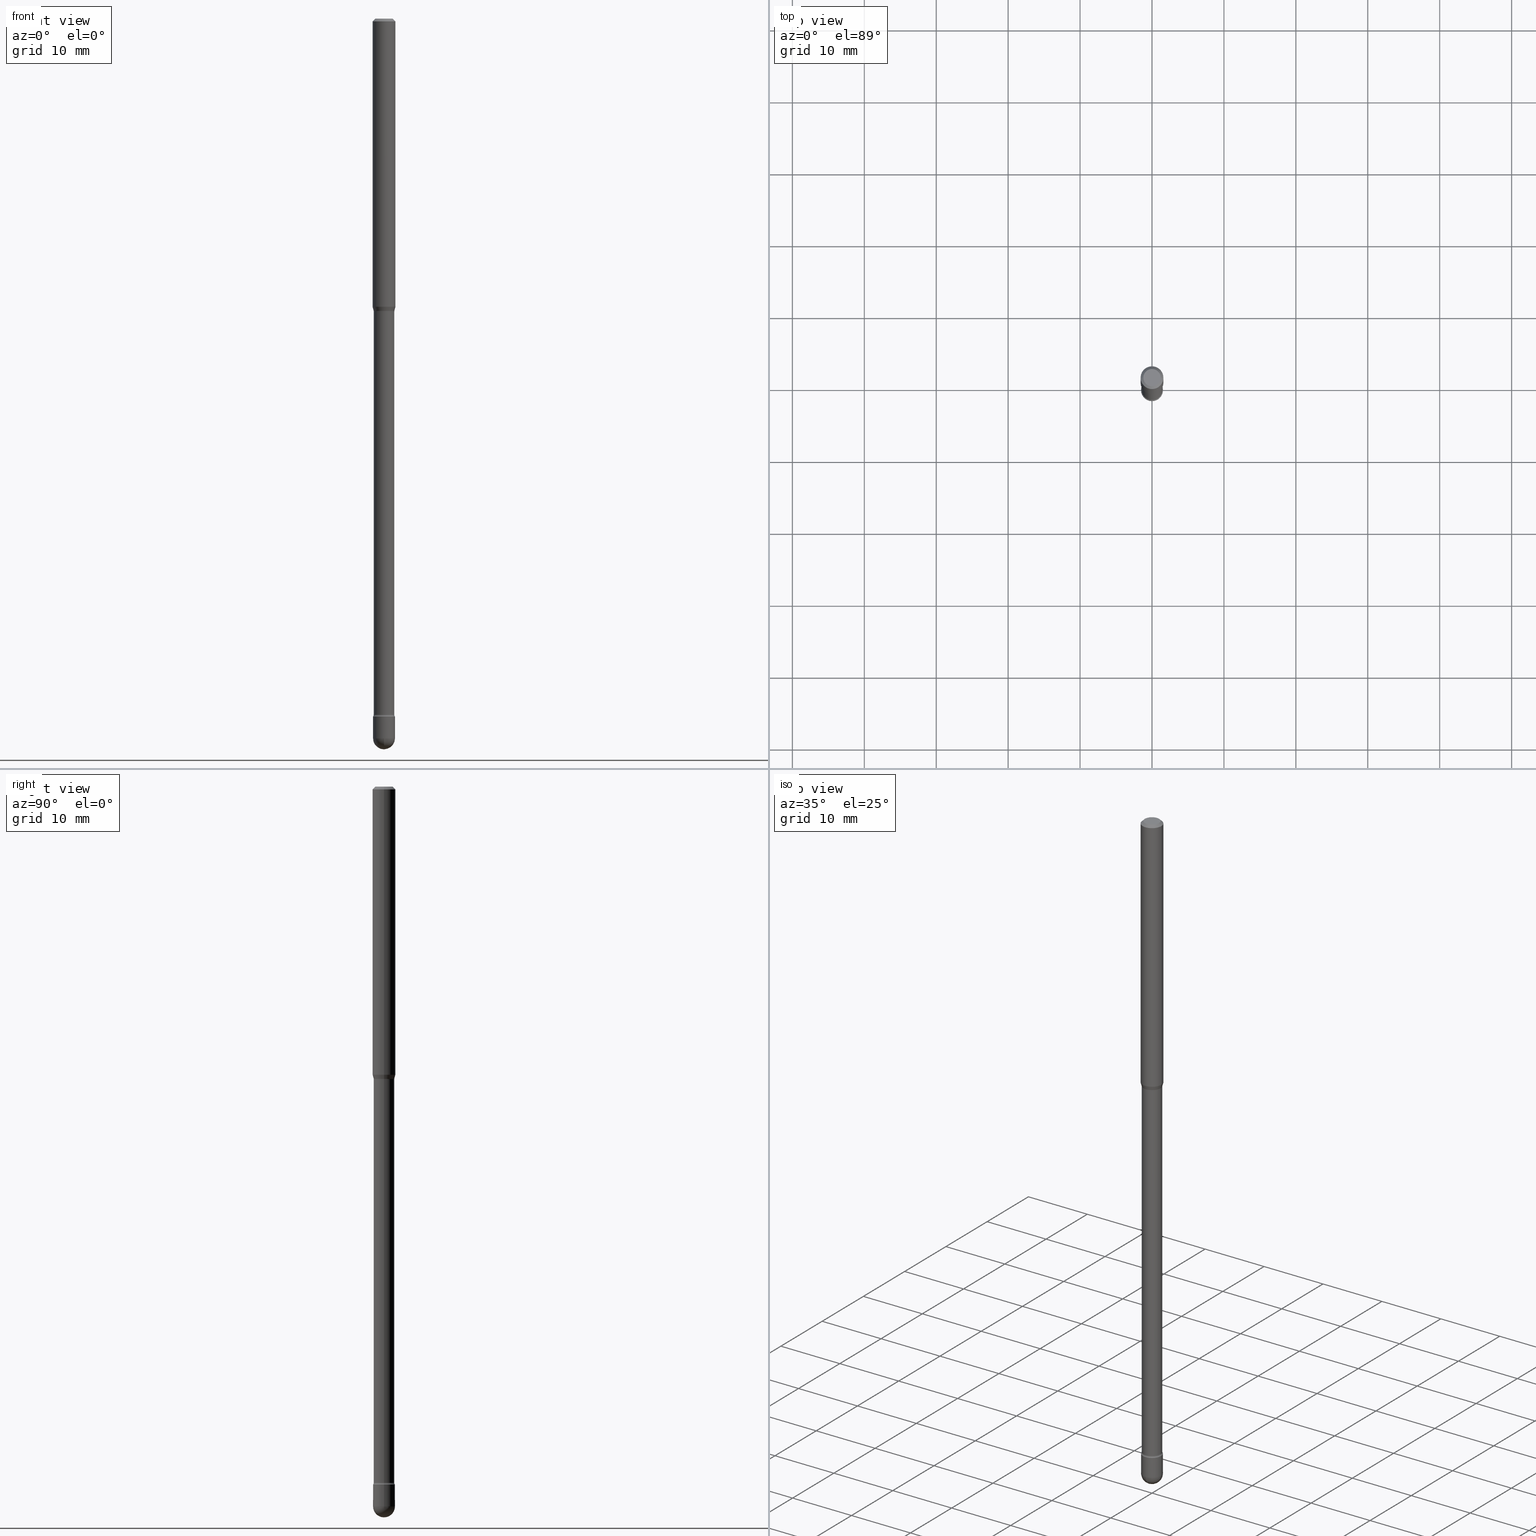
[diagram: canonical four-view strip — front | top / right | iso, engineering-drawing reading convention]
A machine part, canonical four-view strip (front | top / right | iso — engineering-drawing reading convention). The complete STEP part file that produces these views, byte-faithful:
ISO-10303-21;
HEADER;
FILE_DESCRIPTION (( 'STEP AP203' ),
    '1' );
FILE_NAME ('09590.STEP',
    '2024-04-10T01:11:22',
    ( '' ),
    ( '' ),
    'SwSTEP 2.0',
    'SolidWorks 2023',
    '' );
FILE_SCHEMA (( 'CONFIG_CONTROL_DESIGN' ));
ENDSEC;

DATA;
#1 = ADVANCED_FACE ( 'NONE', ( #44 ), #350, .T. ) ;
#2 = DIRECTION ( 'NONE',  ( -2.445468806185136597E-29, 3.491481338843145583E-15, 1.000000000000000000 ) ) ;
#3 = CARTESIAN_POINT ( 'NONE',  ( 0.06250000000000000000, -4.888073874380391431E-16, -0.01500000000000008271 ) ) ;
#4 = DIRECTION ( 'NONE',  ( -2.445468806185136597E-29, 3.491481338843145583E-15, 1.000000000000000000 ) ) ;
#5 = AXIS2_PLACEMENT_3D ( 'NONE', #393, #561, #519 ) ;
#6 = DIRECTION ( 'NONE',  ( 1.000000000000000000, -6.982962677686269077E-15, 0.000000000000000000 ) ) ;
#7 = AXIS2_PLACEMENT_3D ( 'NONE', #486, #272, #94 ) ;
#8 = AXIS2_PLACEMENT_3D ( 'NONE', #107, #407, #281 ) ;
#9 = DIRECTION ( 'NONE',  ( -0.2588190451025191852, 5.211531920934536842E-15, 0.9659258262890687563 ) ) ;
#10 = PRODUCT ( '09590', '09590', '', ( #35 ) ) ;
#11 = DIRECTION ( 'NONE',  ( 1.000000000000000000, -6.982962677686265922E-15, 4.876176775795935793E-29 ) ) ;
#12 = DIRECTION ( 'NONE',  ( -2.445468806185136597E-29, 3.491481338843145583E-15, 1.000000000000000000 ) ) ;
#13 = DIRECTION ( 'NONE',  ( 2.445468806185136597E-29, -3.491481338843145583E-15, -1.000000000000000000 ) ) ;
#14 = CARTESIAN_POINT ( 'NONE',  ( 0.05640000000000024855, -1.369725989521932824E-14, -3.810251153914437250 ) ) ;
#15 = AXIS2_PLACEMENT_3D ( 'NONE', #190, #320, #280 ) ;
#16 = DIRECTION ( 'NONE',  ( -2.445468806185136597E-29, 3.491481338843145583E-15, 1.000000000000000000 ) ) ;
#17 = FACE_OUTER_BOUND ( 'NONE', #504, .T. ) ;
#18 = DIRECTION ( 'NONE',  ( -2.445468806185136597E-29, 3.491481338843145583E-15, 1.000000000000000000 ) ) ;
#19 = EDGE_CURVE ( 'NONE', #37, #376, #112, .T. ) ;
#20 =( NAMED_UNIT ( * ) SI_UNIT ( $, .STERADIAN. ) SOLID_ANGLE_UNIT ( ) );
#21 = DIRECTION ( 'NONE',  ( -1.000000000000000000, 7.105427357600985293E-15, 0.000000000000000000 ) ) ;
#22 = EDGE_CURVE ( 'NONE', #423, #34, #346, .T. ) ;
#23 = CIRCLE ( 'NONE', #218, 0.05640000000000024855 ) ;
#24 = DIRECTION ( 'NONE',  ( 1.000000000000000000, -6.982962677686266711E-15, 4.876176775795935793E-29 ) ) ;
#25 = ORGANIZATION ( 'UNSPECIFIED', 'UNSPECIFIED', '' ) ;
#26 = EDGE_LOOP ( 'NONE', ( #163, #255, #168, #29 ) ) ;
#27 = SPHERICAL_SURFACE ( 'NONE', #183, 0.05999999999999994921 ) ;
#28 = EDGE_CURVE ( 'NONE', #406, #334, #442, .T. ) ;
#29 = ORIENTED_EDGE ( 'NONE', *, *, #65, .F. ) ;
#30 = CARTESIAN_POINT ( 'NONE',  ( 9.635147096369438236E-29, -1.375643647504199401E-14, -3.939999999999999947 ) ) ;
#31 = ADVANCED_FACE ( 'NONE', ( #435 ), #265, .T. ) ;
#32 = ORIENTED_EDGE ( 'NONE', *, *, #514, .F. ) ;
#33 = VECTOR ( 'NONE', #9, 39.37007874015748143 ) ;
#34 = VERTEX_POINT ( 'NONE', #179 ) ;
#35 = MECHANICAL_CONTEXT ( 'NONE', #354, 'mechanical' ) ;
#36 = PERSON_AND_ORGANIZATION ( #233, #25 ) ;
#37 = VERTEX_POINT ( 'NONE', #312 ) ;
#38 = FACE_OUTER_BOUND ( 'NONE', #466, .T. ) ;
#39 = SHAPE_DEFINITION_REPRESENTATION ( #260, #503 ) ;
#40 = ORIENTED_EDGE ( 'NONE', *, *, #117, .T. ) ;
#41 = ADVANCED_FACE ( 'NONE', ( #352 ), #227, .F. ) ;
#42 = AXIS2_PLACEMENT_3D ( 'NONE', #478, #13, #437 ) ;
#43 = AXIS2_PLACEMENT_3D ( 'NONE', #92, #392, #426 ) ;
#44 = FACE_OUTER_BOUND ( 'NONE', #469, .T. ) ;
#45 = PLANE ( 'NONE',  #43 ) ;
#46 = DIRECTION ( 'NONE',  ( 1.000000000000000000, -6.982962677686281699E-15, 0.000000000000000000 ) ) ;
#47 = CARTESIAN_POINT ( 'NONE',  ( 3.668203209277725232E-31, -5.237222008264747365E-17, -0.01500000000000008271 ) ) ;
#48 = EDGE_CURVE ( 'NONE', #527, #401, #186, .T. ) ;
#49 = APPROVAL_DATE_TIME ( #82, #283 ) ;
#50 = FACE_OUTER_BOUND ( 'NONE', #415, .T. ) ;
#51 = APPROVAL_PERSON_ORGANIZATION ( #434, #283, #129 ) ;
#52 = DIRECTION ( 'NONE',  ( 1.000000000000000000, -6.982962677686262766E-15, 0.000000000000000000 ) ) ;
#53 = EDGE_CURVE ( 'NONE', #296, #559, #554, .T. ) ;
#54 = DIRECTION ( 'NONE',  ( 1.000000000000000000, -6.982962677686269077E-15, 0.000000000000000000 ) ) ;
#55 = DIRECTION ( 'NONE',  ( -6.982962677686266711E-15, -1.000000000000000000, 3.491481338843145583E-15 ) ) ;
#56 = CARTESIAN_POINT ( 'NONE',  ( 3.857077745514871327E-29, -5.506884789072561462E-15, -1.577234490073829765 ) ) ;
#57 = DIRECTION ( 'NONE',  ( 1.000000000000000000, -6.982962677686267499E-15, 4.884662768193073002E-29 ) ) ;
#58 = CARTESIAN_POINT ( 'NONE',  ( 0.06250000000000000000, -4.811533449433681963E-16, -0.01500000000000008271 ) ) ;
#59 = VECTOR ( 'NONE', #308, 39.37007874015748143 ) ;
#60 = AXIS2_PLACEMENT_3D ( 'NONE', #368, #181, #187 ) ;
#61 = DIRECTION ( 'NONE',  ( 1.000000000000000000, -6.982962677686262766E-15, 0.000000000000000000 ) ) ;
#62 = CARTESIAN_POINT ( 'NONE',  ( 3.908085362519141297E-29, -5.579710147735421016E-15, -1.598092501787273134 ) ) ;
#63 = EDGE_CURVE ( 'NONE', #423, #527, #366, .T. ) ;
#64 = CARTESIAN_POINT ( 'NONE',  ( -0.07140000000000025493, -1.279609328686510722E-14, -3.810251153914437250 ) ) ;
#65 = EDGE_CURVE ( 'NONE', #376, #344, #251, .T. ) ;
#66 = PRODUCT_RELATED_PRODUCT_CATEGORY ( 'detail', '', ( #10 ) ) ;
#67 = ORIENTED_EDGE ( 'NONE', *, *, #335, .F. ) ;
#68 = AXIS2_PLACEMENT_3D ( 'NONE', #89, #284, #57 ) ;
#69 = CIRCLE ( 'NONE', #563, 0.04749999999999999362 ) ;
#70 = EDGE_CURVE ( 'NONE', #205, #556, #146, .T. ) ;
#71 = COORDINATED_UNIVERSAL_TIME_OFFSET ( 5, 0, .BEHIND. ) ;
#72 = DATE_AND_TIME ( #444, #545 ) ;
#73 = EDGE_LOOP ( 'NONE', ( #509, #222, #135, #67 ) ) ;
#74 = ORIENTED_EDGE ( 'NONE', *, *, #454, .F. ) ;
#75 = AXIS2_PLACEMENT_3D ( 'NONE', #90, #566, #347 ) ;
#76 = APPROVAL_ROLE ( '' ) ;
#77 = AXIS2_PLACEMENT_3D ( 'NONE', #292, #536, #534 ) ;
#78 = ADVANCED_FACE ( 'NONE', ( #342 ), #264, .T. ) ;
#79 = CIRCLE ( 'NONE', #274, 0.05639999999999999181 ) ;
#80 = APPROVAL_DATE_TIME ( #72, #485 ) ;
#81 = ORIENTED_EDGE ( 'NONE', *, *, #353, .T. ) ;
#82 = DATE_AND_TIME ( #134, #98 ) ;
#83 = EDGE_LOOP ( 'NONE', ( #171, #170, #293, #425 ) ) ;
#84 = PERSON_AND_ORGANIZATION ( #233, #25 ) ;
#85 = ORIENTED_EDGE ( 'NONE', *, *, #476, .T. ) ;
#86 = ADVANCED_FACE ( 'NONE', ( #564 ), #521, .F. ) ;
#87 = AXIS2_PLACEMENT_3D ( 'NONE', #47, #429, #221 ) ;
#88 = AXIS2_PLACEMENT_3D ( 'NONE', #403, #16, #206 ) ;
#89 = CARTESIAN_POINT ( 'NONE',  ( 2.023552857353652888E-45, -2.889097183224559242E-31, -8.274703207154537794E-17 ) ) ;
#90 = CARTESIAN_POINT ( 'NONE',  ( 0.000000000000000000, 0.000000000000000000, 0.000000000000000000 ) ) ;
#91 = EDGE_LOOP ( 'NONE', ( #269, #212, #517, #420, #127 ) ) ;
#92 = CARTESIAN_POINT ( 'NONE',  ( 3.316907271900976096E-16, 0.04749999999999999362, 3.181781981480094004E-17 ) ) ;
#93 = DIRECTION ( 'NONE',  ( 1.000000000000000000, -6.982962677686268288E-15, 0.000000000000000000 ) ) ;
#94 = DIRECTION ( 'NONE',  ( 1.000000000000000000, -6.982962677686268288E-15, 0.000000000000000000 ) ) ;
#95 = EDGE_CURVE ( 'NONE', #216, #383, #23, .T. ) ;
#96 = DIRECTION ( 'NONE',  ( -2.445468806185136877E-29, 3.491481338843145188E-15, 1.000000000000000000 ) ) ;
#97 = ORIENTED_EDGE ( 'NONE', *, *, #95, .F. ) ;
#98 = LOCAL_TIME ( 21, 11, 22.00000000000000000, #126 ) ;
#99 = CARTESIAN_POINT ( 'NONE',  ( -0.06000000000000001166, -1.312062195325534521E-14, -3.820000000000000284 ) ) ;
#100 = EDGE_CURVE ( 'NONE', #401, #34, #325, .T. ) ;
#101 = VERTEX_POINT ( 'NONE', #389 ) ;
#102 = DIRECTION ( 'NONE',  ( -2.445468806185136597E-29, 3.491481338843145583E-15, 1.000000000000000000 ) ) ;
#103 = ADVANCED_FACE ( 'NONE', ( #176 ), #128, .T. ) ;
#104 = DIRECTION ( 'NONE',  ( -2.445468806185136597E-29, 3.491481338843145583E-15, 1.000000000000000000 ) ) ;
#105 = CIRCLE ( 'NONE', #15, 0.01500000000000001853 ) ;
#106 = CC_DESIGN_APPROVAL ( #485, ( #239 ) ) ;
#107 = CARTESIAN_POINT ( 'NONE',  ( 3.917579371037814600E-29, -5.593265075727111603E-15, -1.601974787463811278 ) ) ;
#108 = ORIENTED_EDGE ( 'NONE', *, *, #188, .F. ) ;
#109 = DIRECTION ( 'NONE',  ( -2.445468806185136597E-29, 3.491481338843145583E-15, 1.000000000000000000 ) ) ;
#110 = SECURITY_CLASSIFICATION_LEVEL ( 'unclassified' ) ;
#111 = ORIENTED_EDGE ( 'NONE', *, *, #63, .F. ) ;
#112 = CIRCLE ( 'NONE', #201, 0.05999999999999999084 ) ;
#113 = AXIS2_PLACEMENT_3D ( 'NONE', #243, #238, #528 ) ;
#114 = CARTESIAN_POINT ( 'NONE',  ( 9.635147096369438236E-29, -1.375643647504199401E-14, -3.939999999999999947 ) ) ;
#115 = ORIENTED_EDGE ( 'NONE', *, *, #70, .F. ) ;
#116 = EDGE_LOOP ( 'NONE', ( #379, #81, #295, #515, #215 ) ) ;
#117 = EDGE_CURVE ( 'NONE', #383, #391, #131, .T. ) ;
#118 = DIRECTION ( 'NONE',  ( 1.000000000000000000, -6.982962677686269077E-15, 0.000000000000000000 ) ) ;
#119 = ORIENTED_EDGE ( 'NONE', *, *, #122, .F. ) ;
#120 = AXIS2_PLACEMENT_3D ( 'NONE', #489, #194, #362 ) ;
#121 = APPROVAL_ROLE ( '' ) ;
#122 = EDGE_CURVE ( 'NONE', #301, #423, #268, .T. ) ;
#123 = EDGE_CURVE ( 'NONE', #216, #557, #526, .T. ) ;
#124 = ORIENTED_EDGE ( 'NONE', *, *, #299, .T. ) ;
#125 = ADVANCED_FACE ( 'NONE', ( #38 ), #172, .T. ) ;
#126 = COORDINATED_UNIVERSAL_TIME_OFFSET ( 5, 0, .BEHIND. ) ;
#127 = ORIENTED_EDGE ( 'NONE', *, *, #470, .F. ) ;
#128 = CYLINDRICAL_SURFACE ( 'NONE', #75, 0.05999999999999999084 ) ;
#129 = APPROVAL_ROLE ( '' ) ;
#130 = CARTESIAN_POINT ( 'NONE',  ( 4.189777606612693742E-16, 0.05999999999998666816, -3.820000000000000284 ) ) ;
#131 = LINE ( 'NONE', #524, #59 ) ;
#132 = CLOSED_SHELL ( 'NONE', ( #103, #530, #141, #522, #540 ) ) ;
#133 = AXIS2_PLACEMENT_3D ( 'NONE', #259, #273, #217 ) ;
#134 = CALENDAR_DATE ( 2024, 9, 4 ) ;
#135 = ORIENTED_EDGE ( 'NONE', *, *, #514, .T. ) ;
#136 = CYLINDRICAL_SURFACE ( 'NONE', #351, 0.05640000000000012365 ) ;
#137 = CARTESIAN_POINT ( 'NONE',  ( 0.05999999999999999084, -4.189777606611759435E-16, 2.925706065477561055E-30 ) ) ;
#138 = EDGE_CURVE ( 'NONE', #101, #527, #447, .T. ) ;
#139 = CARTESIAN_POINT ( 'NONE',  ( 9.635147096369438236E-29, -1.375643647504199401E-14, -3.939999999999999947 ) ) ;
#140 = CARTESIAN_POINT ( 'NONE',  ( 0.05999999999999999084, -1.396592535537258075E-14, -3.939999999999999947 ) ) ;
#141 = ADVANCED_FACE ( 'NONE', ( #410 ), #487, .T. ) ;
#142 = CARTESIAN_POINT ( 'NONE',  ( 9.341690839627223055E-29, -1.333745871438081580E-14, -3.820000000000000284 ) ) ;
#143 = EDGE_LOOP ( 'NONE', ( #258, #411, #184, #32 ) ) ;
#144 = CARTESIAN_POINT ( 'NONE',  ( 0.04749999999999999362, -4.035134999187581581E-16, -8.274703207154280181E-17 ) ) ;
#145 = MANIFOLD_SOLID_BREP ( 'Body-Move/Copy2[2]', #237 ) ;
#146 = CIRCLE ( 'NONE', #209, 0.05999999999999999778 ) ;
#147 = CARTESIAN_POINT ( 'NONE',  ( -0.06250000000000000000, 4.440892098500642925E-16, 4.780733988912429571E-16 ) ) ;
#148 = AXIS2_PLACEMENT_3D ( 'NONE', #356, #104, #196 ) ;
#149 = DIRECTION ( 'NONE',  ( 1.000000000000000000, -6.982962677686265922E-15, 4.876176775795935793E-29 ) ) ;
#150 = ADVANCED_FACE ( 'NONE', ( #402 ), #464, .F. ) ;
#151 = DIRECTION ( 'NONE',  ( 1.000000000000000000, -6.982962677686266711E-15, 0.000000000000000000 ) ) ;
#152 = DIRECTION ( 'NONE',  ( -2.445468806185136597E-29, 3.491481338843145583E-15, 1.000000000000000000 ) ) ;
#153 = FACE_OUTER_BOUND ( 'NONE', #459, .T. ) ;
#154 = MANIFOLD_SOLID_BREP ( 'Body-Move/Copy2[1]', #132 ) ;
#155 = CARTESIAN_POINT ( 'NONE',  ( -0.06250000000000000000, 3.840629472727441958E-16, -0.01500000000000008271 ) ) ;
#156 = AXIS2_PLACEMENT_3D ( 'NONE', #322, #158, #327 ) ;
#157 = CC_DESIGN_APPROVAL ( #467, ( #460 ) ) ;
#158 = DIRECTION ( 'NONE',  ( 2.445468806185136597E-29, -3.491481338843145583E-15, -1.000000000000000000 ) ) ;
#159 = PERSON_AND_ORGANIZATION_ROLE ( 'design_supplier' ) ;
#160 = FACE_OUTER_BOUND ( 'NONE', #481, .T. ) ;
#161 = UNCERTAINTY_MEASURE_WITH_UNIT (LENGTH_MEASURE( 1.000000000000000082E-05 ), #552, 'distance_accuracy_value', 'NONE');
#162 = PERSON_AND_ORGANIZATION ( #233, #25 ) ;
#163 = ORIENTED_EDGE ( 'NONE', *, *, #287, .F. ) ;
#164 = TOROIDAL_SURFACE ( 'NONE', #148, 0.07140000000000025493, 0.01500000000000000638 ) ;
#165 =( GEOMETRIC_REPRESENTATION_CONTEXT ( 3 ) GLOBAL_UNCERTAINTY_ASSIGNED_CONTEXT ( ( #161 ) ) GLOBAL_UNIT_ASSIGNED_CONTEXT ( ( #552, #332, #20 ) ) REPRESENTATION_CONTEXT ( 'NONE', 'WORKASPACE' ) );
#166 = COORDINATED_UNIVERSAL_TIME_OFFSET ( 5, 0, .BEHIND. ) ;
#167 = EDGE_CURVE ( 'NONE', #383, #205, #252, .T. ) ;
#168 = ORIENTED_EDGE ( 'NONE', *, *, #458, .F. ) ;
#169 = DATE_AND_TIME ( #558, #474 ) ;
#170 = ORIENTED_EDGE ( 'NONE', *, *, #22, .T. ) ;
#171 = ORIENTED_EDGE ( 'NONE', *, *, #229, .T. ) ;
#172 = CONICAL_SURFACE ( 'NONE', #156, 0.06250000000000000000, 0.7853981633974483900 ) ;
#173 = CC_DESIGN_PERSON_AND_ORGANIZATION_ASSIGNMENT ( #211, #508, ( #10 ) ) ;
#174 = CC_DESIGN_SECURITY_CLASSIFICATION ( #555, ( #239 ) ) ;
#175 = ORIENTED_EDGE ( 'NONE', *, *, #207, .F. ) ;
#176 = FACE_OUTER_BOUND ( 'NONE', #116, .T. ) ;
#177 = ORIENTED_EDGE ( 'NONE', *, *, #53, .T. ) ;
#178 = CARTESIAN_POINT ( 'NONE',  ( -0.05999999999999999084, 4.263256414560600464E-16, -2.951361054152942712E-30 ) ) ;
#179 = CARTESIAN_POINT ( 'NONE',  ( -0.06250000000000000000, -2.335539294727541852E-15, -0.01500000000000008271 ) ) ;
#180 = DIRECTION ( 'NONE',  ( -2.445468806185136597E-29, 3.491481338843145583E-15, 1.000000000000000000 ) ) ;
#181 = DIRECTION ( 'NONE',  ( -6.982962677686266711E-15, -1.000000000000000000, 3.491481338843145583E-15 ) ) ;
#182 = AXIS2_PLACEMENT_3D ( 'NONE', #365, #539, #236 ) ;
#183 = AXIS2_PLACEMENT_3D ( 'NONE', #246, #409, #324 ) ;
#184 = ORIENTED_EDGE ( 'NONE', *, *, #123, .T. ) ;
#185 = CARTESIAN_POINT ( 'NONE',  ( -0.05639999999999999181, -9.047596834993764362E-15, -1.601974787463811278 ) ) ;
#186 = LINE ( 'NONE', #304, #317 ) ;
#187 = DIRECTION ( 'NONE',  ( 1.000000000000000000, -6.982962677686259611E-15, 0.000000000000000000 ) ) ;
#188 = EDGE_CURVE ( 'NONE', #314, #37, #500, .T. ) ;
#189 = FACE_OUTER_BOUND ( 'NONE', #83, .T. ) ;
#190 = CARTESIAN_POINT ( 'NONE',  ( -0.07139999999999999125, -5.085937562394399935E-15, -1.601974787463811278 ) ) ;
#191 = VECTOR ( 'NONE', #496, 39.37007874015748143 ) ;
#192 = LINE ( 'NONE', #58, #501 ) ;
#193 = CIRCLE ( 'NONE', #523, 0.05691111260566398405 ) ;
#194 = DIRECTION ( 'NONE',  ( -2.445468806185136597E-29, 3.491481338843145583E-15, 1.000000000000000000 ) ) ;
#195 = EDGE_LOOP ( 'NONE', ( #448, #388 ) ) ;
#196 = DIRECTION ( 'NONE',  ( 1.000000000000000000, -6.982962677686274599E-15, 4.883557194083115143E-29 ) ) ;
#197 = EDGE_CURVE ( 'NONE', #34, #401, #340, .T. ) ;
#198 = ORIENTED_EDGE ( 'NONE', *, *, #63, .T. ) ;
#199 = CYLINDRICAL_SURFACE ( 'NONE', #432, 0.05999999999999999084 ) ;
#200 = CARTESIAN_POINT ( 'NONE',  ( -0.06000000000000001166, -1.291113307292475689E-14, -3.820000000000000284 ) ) ;
#201 = AXIS2_PLACEMENT_3D ( 'NONE', #139, #2, #6 ) ;
#202 = CIRCLE ( 'NONE', #456, 0.01500000000000001159 ) ;
#203 = CARTESIAN_POINT ( 'NONE',  ( 9.341690839627223055E-29, -1.333745871438081580E-14, -3.820000000000000284 ) ) ;
#204 = CARTESIAN_POINT ( 'NONE',  ( -0.04749999999999999362, 3.578768372314208041E-16, -8.274703207154778150E-17 ) ) ;
#205 = VERTEX_POINT ( 'NONE', #200 ) ;
#206 = DIRECTION ( 'NONE',  ( 1.000000000000000000, -6.982962677686274599E-15, 4.883557194083115143E-29 ) ) ;
#207 = EDGE_CURVE ( 'NONE', #559, #34, #400, .T. ) ;
#208 = ORIENTED_EDGE ( 'NONE', *, *, #70, .T. ) ;
#209 = AXIS2_PLACEMENT_3D ( 'NONE', #142, #345, #93 ) ;
#210 = CIRCLE ( 'NONE', #8, 0.05639999999999999181 ) ;
#211 = PERSON_AND_ORGANIZATION ( #233, #25 ) ;
#212 = ORIENTED_EDGE ( 'NONE', *, *, #19, .T. ) ;
#213 = APPROVAL_STATUS ( 'not_yet_approved' ) ;
#214 = PERSON_AND_ORGANIZATION_ROLE ( 'creator' ) ;
#215 = ORIENTED_EDGE ( 'NONE', *, *, #458, .T. ) ;
#216 = VERTEX_POINT ( 'NONE', #14 ) ;
#217 = DIRECTION ( 'NONE',  ( 6.982962677686265922E-15, 1.000000000000000000, 0.000000000000000000 ) ) ;
#218 = AXIS2_PLACEMENT_3D ( 'NONE', #433, #436, #46 ) ;
#219 = TOROIDAL_SURFACE ( 'NONE', #88, 0.07140000000000025493, 0.01500000000000000638 ) ;
#220 = ORIENTED_EDGE ( 'NONE', *, *, #95, .T. ) ;
#221 = DIRECTION ( 'NONE',  ( 1.000000000000000000, -6.982962677686266711E-15, 0.000000000000000000 ) ) ;
#222 = ORIENTED_EDGE ( 'NONE', *, *, #230, .T. ) ;
#223 = PERSON_AND_ORGANIZATION ( #233, #25 ) ;
#224 = ORIENTED_EDGE ( 'NONE', *, *, #22, .F. ) ;
#225 = AXIS2_PLACEMENT_3D ( 'NONE', #453, #109, #533 ) ;
#226 = LOCAL_TIME ( 21, 11, 22.00000000000000000, #71 ) ;
#227 = PLANE ( 'NONE',  #359 ) ;
#228 = DIRECTION ( 'NONE',  ( 1.000000000000000000, -6.982962677686267499E-15, 4.884662768193073002E-29 ) ) ;
#229 = EDGE_CURVE ( 'NONE', #527, #423, #289, .T. ) ;
#230 = EDGE_CURVE ( 'NONE', #301, #391, #105, .T. ) ;
#231 = CARTESIAN_POINT ( 'NONE',  ( 0.05691111260566398405, -5.977118323006372468E-15, -1.598092501787273134 ) ) ;
#232 = ORIENTED_EDGE ( 'NONE', *, *, #53, .F. ) ;
#233 = PERSON ( 'UNSPECIFIED', 'UNSPECIFIED', 'UNSPECIFIED', ('UNSPECIFIED'), ('UNSPECIFIED'), ('UNSPECIFIED') ) ;
#234 = DIRECTION ( 'NONE',  ( -0.7071067811865475727, 2.468850131082257455E-15, -0.7071067811865474617 ) ) ;
#235 = CARTESIAN_POINT ( 'NONE',  ( -0.06250000000000000000, -5.062795579222499634E-15, -1.577234490073829765 ) ) ;
#236 = DIRECTION ( 'NONE',  ( 1.000000000000000000, -6.982962677686266711E-15, 4.852736867747366207E-29 ) ) ;
#237 = CLOSED_SHELL ( 'NONE', ( #86, #404, #267, #1, #241, #457, #254, #31, #125, #390, #41, #480, #78, #150 ) ) ;
#238 = DIRECTION ( 'NONE',  ( -2.445468806185136597E-29, 3.491481338843145583E-15, 1.000000000000000000 ) ) ;
#239 = PRODUCT_DEFINITION_FORMATION_WITH_SPECIFIED_SOURCE ( 'ANY', '', #10, .NOT_KNOWN. ) ;
#240 = CARTESIAN_POINT ( 'NONE',  ( 3.668203209277725232E-31, -5.237222008264747365E-17, -0.01500000000000008271 ) ) ;
#241 = ADVANCED_FACE ( 'NONE', ( #189 ), #358, .T. ) ;
#242 = CARTESIAN_POINT ( 'NONE',  ( 9.635147096369438236E-29, -1.375643647504199401E-14, -3.939999999999999947 ) ) ;
#243 = CARTESIAN_POINT ( 'NONE',  ( 9.317850340628678124E-29, -1.330342080019781968E-14, -3.810251153914437250 ) ) ;
#244 = AXIS2_PLACEMENT_3D ( 'NONE', #240, #491, #151 ) ;
#245 = CIRCLE ( 'NONE', #253, 0.05691111260566398405 ) ;
#246 = CARTESIAN_POINT ( 'NONE',  ( 9.635147096369438236E-29, -1.375643647504199401E-14, -3.939999999999999947 ) ) ;
#247 =( LENGTH_UNIT ( ) NAMED_UNIT ( * ) SI_UNIT ( $, .METRE. ) );
#248 = DIRECTION ( 'NONE',  ( -2.445468806185136597E-29, 3.491481338843145583E-15, 1.000000000000000000 ) ) ;
#249 = ORIENTED_EDGE ( 'NONE', *, *, #462, .F. ) ;
#250 = ORIENTED_EDGE ( 'NONE', *, *, #279, .T. ) ;
#251 = CIRCLE ( 'NONE', #5, 0.05999999999999999084 ) ;
#252 = CIRCLE ( 'NONE', #262, 0.01500000000000001159 ) ;
#253 = AXIS2_PLACEMENT_3D ( 'NONE', #328, #542, #495 ) ;
#254 = ADVANCED_FACE ( 'NONE', ( #17 ), #473, .T. ) ;
#255 = ORIENTED_EDGE ( 'NONE', *, *, #386, .T. ) ;
#256 = ORIENTED_EDGE ( 'NONE', *, *, #421, .F. ) ;
#257 = APPLICATION_PROTOCOL_DEFINITION ( 'international standard', 'config_control_design', 1994, #502 ) ;
#258 = ORIENTED_EDGE ( 'NONE', *, *, #117, .F. ) ;
#259 = CARTESIAN_POINT ( 'NONE',  ( 9.635147096369438236E-29, -1.375643647504199401E-14, -3.939999999999999947 ) ) ;
#260 = PRODUCT_DEFINITION_SHAPE ( 'NONE', 'NONE',  #460 ) ;
#261 = ORIENTED_EDGE ( 'NONE', *, *, #100, .T. ) ;
#262 = AXIS2_PLACEMENT_3D ( 'NONE', #64, #445, #21 ) ;
#263 = CIRCLE ( 'NONE', #113, 0.05640000000000024855 ) ;
#264 = CYLINDRICAL_SURFACE ( 'NONE', #482, 0.05640000000000012365 ) ;
#265 = CYLINDRICAL_SURFACE ( 'NONE', #431, 0.06250000000000000000 ) ;
#266 = CARTESIAN_POINT ( 'NONE',  ( -4.263256414559634603E-16, -0.06000000000001371597, -3.939999999999999947 ) ) ;
#267 = ADVANCED_FACE ( 'NONE', ( #544 ), #164, .F. ) ;
#268 = LINE ( 'NONE', #311, #33 ) ;
#269 = ORIENTED_EDGE ( 'NONE', *, *, #353, .F. ) ;
#270 = DIRECTION ( 'NONE',  ( 1.000000000000000000, -6.982962677686266711E-15, 4.839830652673559432E-29 ) ) ;
#271 = CARTESIAN_POINT ( 'NONE',  ( -1.169113584055446105E-44, 1.669184350826100908E-30, 4.780733988912460139E-16 ) ) ;
#272 = DIRECTION ( 'NONE',  ( -2.445468806185136597E-29, 3.491481338843145583E-15, 1.000000000000000000 ) ) ;
#273 = DIRECTION ( 'NONE',  ( 1.000000000000000000, -6.982962677686265922E-15, 4.883557194083112340E-29 ) ) ;
#274 = AXIS2_PLACEMENT_3D ( 'NONE', #498, #490, #424 ) ;
#275 = CC_DESIGN_DATE_AND_TIME_ASSIGNMENT ( #553, #333, ( #460 ) ) ;
#276 = ORIENTED_EDGE ( 'NONE', *, *, #405, .T. ) ;
#277 = CARTESIAN_POINT ( 'NONE',  ( 3.908085362519141297E-29, -5.579710147735421016E-15, -1.598092501787273134 ) ) ;
#278 = CARTESIAN_POINT ( 'NONE',  ( 9.341690839627223055E-29, -1.333745871438081580E-14, -3.820000000000000284 ) ) ;
#279 = EDGE_CURVE ( 'NONE', #557, #391, #210, .T. ) ;
#280 = DIRECTION ( 'NONE',  ( -1.000000000000000000, 7.105427357600982137E-15, 0.000000000000000000 ) ) ;
#281 = DIRECTION ( 'NONE',  ( 1.000000000000000000, -6.982962677686261977E-15, 0.000000000000000000 ) ) ;
#282 = DIRECTION ( 'NONE',  ( -2.438088387897960049E-29, 3.491481338843145188E-15, 1.000000000000000000 ) ) ;
#283 = APPROVAL ( #468, 'UNSPECIFIED' ) ;
#284 = DIRECTION ( 'NONE',  ( -2.445468806185136597E-29, 3.491481338843145583E-15, 1.000000000000000000 ) ) ;
#285 = DIRECTION ( 'NONE',  ( -2.445468806185136597E-29, 3.491481338843145583E-15, 1.000000000000000000 ) ) ;
#286 = LENGTH_MEASURE_WITH_UNIT ( LENGTH_MEASURE( 0.02539999999999999897 ), #247 );
#287 = EDGE_CURVE ( 'NONE', #339, #376, #493, .T. ) ;
#288 = CARTESIAN_POINT ( 'NONE',  ( 0.06250000000000000000, -5.943319956427953131E-15, -1.577234490073829765 ) ) ;
#289 = CIRCLE ( 'NONE', #562, 0.06250000000000000000 ) ;
#290 = CC_DESIGN_PERSON_AND_ORGANIZATION_ASSIGNMENT ( #36, #214, ( #239 ) ) ;
#291 = CONICAL_SURFACE ( 'NONE', #385, 0.05691111260566398405, 0.2617993877991477980 ) ;
#292 = CARTESIAN_POINT ( 'NONE',  ( 0.000000000000000000, 0.000000000000000000, 0.000000000000000000 ) ) ;
#293 = ORIENTED_EDGE ( 'NONE', *, *, #100, .F. ) ;
#294 = FACE_OUTER_BOUND ( 'NONE', #26, .T. ) ;
#295 = ORIENTED_EDGE ( 'NONE', *, *, #28, .F. ) ;
#296 = VERTEX_POINT ( 'NONE', #144 ) ;
#297 = LOCAL_TIME ( 21, 11, 22.00000000000000000, #300 ) ;
#298 = COORDINATED_UNIVERSAL_TIME_OFFSET ( 5, 0, .BEHIND. ) ;
#299 = EDGE_CURVE ( 'NONE', #301, #101, #193, .T. ) ;
#300 = COORDINATED_UNIVERSAL_TIME_OFFSET ( 5, 0, .BEHIND. ) ;
#301 = VERTEX_POINT ( 'NONE', #484 ) ;
#302 = DATE_AND_TIME ( #439, #297 ) ;
#303 = EDGE_LOOP ( 'NONE', ( #74, #375, #208, #378 ) ) ;
#304 = CARTESIAN_POINT ( 'NONE',  ( 0.06250000000000000000, -4.364351673553899931E-16, 4.780733988912490708E-16 ) ) ;
#305 = CARTESIAN_POINT ( 'NONE',  ( -0.05640000000000024855, -1.290690388507694080E-14, -3.810251153914437250 ) ) ;
#306 = VECTOR ( 'NONE', #96, 39.37007874015748143 ) ;
#307 = AXIS2_PLACEMENT_3D ( 'NONE', #535, #449, #529 ) ;
#308 = DIRECTION ( 'NONE',  ( -2.445468806185136877E-29, 3.491481338843145188E-15, 1.000000000000000000 ) ) ;
#309 = ORIENTED_EDGE ( 'NONE', *, *, #229, .F. ) ;
#310 = DIRECTION ( 'NONE',  ( -2.445468806185136877E-29, 3.491481338843145188E-15, 1.000000000000000000 ) ) ;
#311 = CARTESIAN_POINT ( 'NONE',  ( -0.05691111260566398405, -5.175332371275624364E-15, -1.598092501787273134 ) ) ;
#312 = CARTESIAN_POINT ( 'NONE',  ( -0.05999999999999999084, -1.312062195325534521E-14, -3.939999999999999947 ) ) ;
#313 = CARTESIAN_POINT ( 'NONE',  ( 0.05640000000000012365, -3.938390950215046157E-16, 4.780733988912487749E-16 ) ) ;
#314 = VERTEX_POINT ( 'NONE', #364 ) ;
#315 = DIRECTION ( 'NONE',  ( 0.7071067811865475727, -7.319954787623256045E-15, -0.7071067811865474617 ) ) ;
#316 = DIRECTION ( 'NONE',  ( 1.000000000000000000, -6.982962677686260400E-15, 0.000000000000000000 ) ) ;
#317 = VECTOR ( 'NONE', #472, 39.37007874015748143 ) ;
#318 = CIRCLE ( 'NONE', #451, 0.05999999999999999778 ) ;
#319 = ORIENTED_EDGE ( 'NONE', *, *, #386, .F. ) ;
#320 = DIRECTION ( 'NONE',  ( 7.105427357601001859E-15, 1.000000000000000000, -3.491481338843145583E-15 ) ) ;
#321 = DIRECTION ( 'NONE',  ( 1.000000000000000000, -6.982962677686268288E-15, 0.000000000000000000 ) ) ;
#322 = CARTESIAN_POINT ( 'NONE',  ( 3.668203209277725232E-31, -5.237222008264747365E-17, -0.01500000000000008271 ) ) ;
#323 = DIRECTION ( 'NONE',  ( 1.000000000000000000, -6.982962677686260400E-15, 0.000000000000000000 ) ) ;
#324 = DIRECTION ( 'NONE',  ( 6.982962677686265922E-15, 1.000000000000000000, 0.000000000000000000 ) ) ;
#325 = CIRCLE ( 'NONE', #87, 0.06250000000000000000 ) ;
#326 = CIRCLE ( 'NONE', #367, 0.05999999999999999778 ) ;
#327 = DIRECTION ( 'NONE',  ( -1.000000000000000000, 6.982962677686266711E-15, 0.000000000000000000 ) ) ;
#328 = CARTESIAN_POINT ( 'NONE',  ( 3.908085362519141297E-29, -5.579710147735421016E-15, -1.598092501787273134 ) ) ;
#329 = DIRECTION ( 'NONE',  ( -1.000000000000000000, 6.982962677686265922E-15, -4.883557194083113462E-29 ) ) ;
#330 = CIRCLE ( 'NONE', #419, 0.05999999999999999084 ) ;
#331 = ORIENTED_EDGE ( 'NONE', *, *, #279, .F. ) ;
#332 =( NAMED_UNIT ( * ) PLANE_ANGLE_UNIT ( ) SI_UNIT ( $, .RADIAN. ) );
#333 = DATE_TIME_ROLE ( 'creation_date' ) ;
#334 = VERTEX_POINT ( 'NONE', #99 ) ;
#335 = EDGE_CURVE ( 'NONE', #101, #557, #532, .T. ) ;
#336 = EDGE_LOOP ( 'NONE', ( #249, #115 ) ) ;
#337 = CALENDAR_DATE ( 2024, 9, 4 ) ;
#338 = DATE_TIME_ROLE ( 'classification_date' ) ;
#339 = VERTEX_POINT ( 'NONE', #427 ) ;
#340 = CIRCLE ( 'NONE', #244, 0.06250000000000000000 ) ;
#341 = APPROVAL_PERSON_ORGANIZATION ( #511, #485, #121 ) ;
#342 = FACE_OUTER_BOUND ( 'NONE', #143, .T. ) ;
#343 = ORIENTED_EDGE ( 'NONE', *, *, #462, .T. ) ;
#344 = VERTEX_POINT ( 'NONE', #140 ) ;
#345 = DIRECTION ( 'NONE',  ( -2.445468806185136597E-29, 3.491481338843145583E-15, 1.000000000000000000 ) ) ;
#346 = LINE ( 'NONE', #147, #418 ) ;
#347 = DIRECTION ( 'NONE',  ( 1.000000000000000000, -6.982962677686266711E-15, 4.876176775795935793E-29 ) ) ;
#348 = EDGE_LOOP ( 'NONE', ( #319, #440, #507, #108 ) ) ;
#349 = LINE ( 'NONE', #137, #374 ) ;
#350 = CONICAL_SURFACE ( 'NONE', #42, 0.06250000000000000000, 0.7853981633974483900 ) ;
#351 = AXIS2_PLACEMENT_3D ( 'NONE', #384, #180, #270 ) ;
#352 = FACE_OUTER_BOUND ( 'NONE', #336, .T. ) ;
#353 = EDGE_CURVE ( 'NONE', #37, #334, #516, .T. ) ;
#354 = APPLICATION_CONTEXT ( 'configuration controlled 3d designs of mechanical parts and assemblies' ) ;
#355 = ORIENTED_EDGE ( 'NONE', *, *, #197, .F. ) ;
#356 = CARTESIAN_POINT ( 'NONE',  ( 9.317850340628678124E-29, -1.330342080019781968E-14, -3.810251153914437250 ) ) ;
#357 = DIRECTION ( 'NONE',  ( -2.445468806185136877E-29, 3.491481338843145188E-15, 1.000000000000000000 ) ) ;
#358 = CYLINDRICAL_SURFACE ( 'NONE', #182, 0.06250000000000000000 ) ;
#359 = AXIS2_PLACEMENT_3D ( 'NONE', #130, #398, #11 ) ;
#360 = AXIS2_PLACEMENT_3D ( 'NONE', #30, #329, #499 ) ;
#361 = EDGE_LOOP ( 'NONE', ( #224, #198, #520, #355 ) ) ;
#362 = DIRECTION ( 'NONE',  ( 1.000000000000000000, -6.982962677686260400E-15, 0.000000000000000000 ) ) ;
#363 = FACE_OUTER_BOUND ( 'NONE', #91, .T. ) ;
#364 = CARTESIAN_POINT ( 'NONE',  ( 4.189777606612720366E-16, 0.05999999999998621020, -3.939999999999999947 ) ) ;
#365 = CARTESIAN_POINT ( 'NONE',  ( -1.169113584055446105E-44, 1.669184350826100908E-30, 4.780733988912460139E-16 ) ) ;
#366 = CIRCLE ( 'NONE', #450, 0.06250000000000000000 ) ;
#367 = AXIS2_PLACEMENT_3D ( 'NONE', #203, #455, #321 ) ;
#368 = CARTESIAN_POINT ( 'NONE',  ( 0.07139999999999999125, -6.091848610913910377E-15, -1.601974787463811278 ) ) ;
#369 = SPHERICAL_SURFACE ( 'NONE', #360, 0.05999999999999994921 ) ;
#370 = DIRECTION ( 'NONE',  ( 1.000000000000000000, -6.982962677686262766E-15, 0.000000000000000000 ) ) ;
#371 = ORIENTED_EDGE ( 'NONE', *, *, #207, .T. ) ;
#372 = CARTESIAN_POINT ( 'NONE',  ( 0.05639999999999999181, -5.987104170748616218E-15, -1.601974787463811278 ) ) ;
#373 = AXIS2_PLACEMENT_3D ( 'NONE', #242, #102, #54 ) ;
#374 = VECTOR ( 'NONE', #310, 39.37007874015748143 ) ;
#375 = ORIENTED_EDGE ( 'NONE', *, *, #167, .T. ) ;
#376 = VERTEX_POINT ( 'NONE', #266 ) ;
#377 = EDGE_CURVE ( 'NONE', #344, #406, #349, .T. ) ;
#378 = ORIENTED_EDGE ( 'NONE', *, *, #476, .F. ) ;
#379 = ORIENTED_EDGE ( 'NONE', *, *, #188, .T. ) ;
#380 = ORIENTED_EDGE ( 'NONE', *, *, #138, .T. ) ;
#381 = EDGE_CURVE ( 'NONE', #101, #301, #245, .T. ) ;
#382 = PERSON_AND_ORGANIZATION_ROLE ( 'creator' ) ;
#383 = VERTEX_POINT ( 'NONE', #305 ) ;
#384 = CARTESIAN_POINT ( 'NONE',  ( -1.169113584055446105E-44, 1.669184350826100908E-30, 4.780733988912460139E-16 ) ) ;
#385 = AXIS2_PLACEMENT_3D ( 'NONE', #277, #443, #323 ) ;
#386 = EDGE_CURVE ( 'NONE', #339, #314, #465, .T. ) ;
#387 = DIRECTION ( 'NONE',  ( -2.445468806185136597E-29, 3.491481338843145583E-15, 1.000000000000000000 ) ) ;
#388 = ORIENTED_EDGE ( 'NONE', *, *, #470, .T. ) ;
#389 = CARTESIAN_POINT ( 'NONE',  ( 0.05691111260566398405, -5.977118323006372468E-15, -1.598092501787273134 ) ) ;
#390 = ADVANCED_FACE ( 'NONE', ( #50 ), #45, .F. ) ;
#391 = VERTEX_POINT ( 'NONE', #185 ) ;
#392 = DIRECTION ( 'NONE',  ( 2.438088387897960049E-29, -3.491481338843145188E-15, -1.000000000000000000 ) ) ;
#393 = CARTESIAN_POINT ( 'NONE',  ( 9.635147096369438236E-29, -1.375643647504199401E-14, -3.939999999999999947 ) ) ;
#394 = DIRECTION ( 'NONE',  ( -2.445468806185136597E-29, 3.491481338843145583E-15, 1.000000000000000000 ) ) ;
#395 = FACE_OUTER_BOUND ( 'NONE', #408, .T. ) ;
#396 = APPROVAL_PERSON_ORGANIZATION ( #84, #467, #76 ) ;
#397 = DIRECTION ( 'NONE',  ( 1.000000000000000000, -6.982962677686266711E-15, 4.839830652673559432E-29 ) ) ;
#398 = DIRECTION ( 'NONE',  ( -2.438088387897960049E-29, 3.491481338843145188E-15, 1.000000000000000000 ) ) ;
#399 = CARTESIAN_POINT ( 'NONE',  ( 0.05999999999999999778, -1.375643647504199244E-14, -3.820000000000000284 ) ) ;
#400 = LINE ( 'NONE', #155, #543 ) ;
#401 = VERTEX_POINT ( 'NONE', #3 ) ;
#402 = FACE_OUTER_BOUND ( 'NONE', #560, .T. ) ;
#403 = CARTESIAN_POINT ( 'NONE',  ( 9.317850340628678124E-29, -1.330342080019781968E-14, -3.810251153914437250 ) ) ;
#404 = ADVANCED_FACE ( 'NONE', ( #395 ), #136, .T. ) ;
#405 = EDGE_CURVE ( 'NONE', #559, #296, #69, .T. ) ;
#406 = VERTEX_POINT ( 'NONE', #399 ) ;
#407 = DIRECTION ( 'NONE',  ( -2.445468806185136597E-29, 3.491481338843145583E-15, 1.000000000000000000 ) ) ;
#408 = EDGE_LOOP ( 'NONE', ( #220, #40, #331, #525 ) ) ;
#409 = DIRECTION ( 'NONE',  ( -1.000000000000000000, 6.982962677686265922E-15, -4.883557194083113462E-29 ) ) ;
#410 = FACE_OUTER_BOUND ( 'NONE', #195, .T. ) ;
#411 = ORIENTED_EDGE ( 'NONE', *, *, #454, .T. ) ;
#412 = CC_DESIGN_APPROVAL ( #283, ( #555 ) ) ;
#413 = FACE_OUTER_BOUND ( 'NONE', #348, .T. ) ;
#414 = DIRECTION ( 'NONE',  ( -2.445468806185136597E-29, 3.491481338843145583E-15, 1.000000000000000000 ) ) ;
#415 = EDGE_LOOP ( 'NONE', ( #276, #177 ) ) ;
#416 = DESIGN_CONTEXT ( 'detailed design', #502, 'design' ) ;
#417 = CC_DESIGN_DATE_AND_TIME_ASSIGNMENT ( #302, #338, ( #555 ) ) ;
#418 = VECTOR ( 'NONE', #357, 39.37007874015748143 ) ;
#419 = AXIS2_PLACEMENT_3D ( 'NONE', #114, #248, #118 ) ;
#420 = ORIENTED_EDGE ( 'NONE', *, *, #377, .T. ) ;
#421 = EDGE_CURVE ( 'NONE', #296, #401, #192, .T. ) ;
#422 = CARTESIAN_POINT ( 'NONE',  ( 9.341690839627223055E-29, -1.333745871438081580E-14, -3.820000000000000284 ) ) ;
#423 = VERTEX_POINT ( 'NONE', #235 ) ;
#424 = DIRECTION ( 'NONE',  ( 1.000000000000000000, -6.982962677686261977E-15, 0.000000000000000000 ) ) ;
#425 = ORIENTED_EDGE ( 'NONE', *, *, #48, .F. ) ;
#426 = DIRECTION ( 'NONE',  ( -1.000000000000000000, 6.982962677686265922E-15, -4.876176775795935793E-29 ) ) ;
#427 = CARTESIAN_POINT ( 'NONE',  ( 9.784440723608083992E-29, -1.396225141497514040E-14, -4.000000000000000000 ) ) ;
#428 = APPROVAL_DATE_TIME ( #169, #467 ) ;
#429 = DIRECTION ( 'NONE',  ( -2.445468806185136597E-29, 3.491481338843145583E-15, 1.000000000000000000 ) ) ;
#430 = CARTESIAN_POINT ( 'NONE',  ( -1.169113584055446105E-44, 1.669184350826100908E-30, 4.780733988912460139E-16 ) ) ;
#431 = AXIS2_PLACEMENT_3D ( 'NONE', #430, #394, #565 ) ;
#432 = AXIS2_PLACEMENT_3D ( 'NONE', #538, #414, #24 ) ;
#433 = CARTESIAN_POINT ( 'NONE',  ( 9.317850340628678124E-29, -1.330342080019781968E-14, -3.810251153914437250 ) ) ;
#434 = PERSON_AND_ORGANIZATION ( #233, #25 ) ;
#435 = FACE_OUTER_BOUND ( 'NONE', #361, .T. ) ;
#436 = DIRECTION ( 'NONE',  ( -2.445468806185136597E-29, 3.491481338843145583E-15, 1.000000000000000000 ) ) ;
#437 = DIRECTION ( 'NONE',  ( -1.000000000000000000, 6.982962677686266711E-15, 0.000000000000000000 ) ) ;
#438 = CARTESIAN_POINT ( 'NONE',  ( 3.917579371037814600E-29, -5.593265075727111603E-15, -1.601974787463811278 ) ) ;
#439 = CALENDAR_DATE ( 2024, 9, 4 ) ;
#440 = ORIENTED_EDGE ( 'NONE', *, *, #287, .T. ) ;
#441 = DIRECTION ( 'NONE',  ( -2.445468806185136597E-29, 3.491481338843145583E-15, 1.000000000000000000 ) ) ;
#442 = CIRCLE ( 'NONE', #7, 0.05999999999999999778 ) ;
#443 = DIRECTION ( 'NONE',  ( -2.445468806185136597E-29, 3.491481338843145583E-15, 1.000000000000000000 ) ) ;
#444 = CALENDAR_DATE ( 2024, 9, 4 ) ;
#445 = DIRECTION ( 'NONE',  ( 7.105427357601001859E-15, 1.000000000000000000, -3.491481338843145583E-15 ) ) ;
#446 = CC_DESIGN_PERSON_AND_ORGANIZATION_ASSIGNMENT ( #223, #477, ( #555 ) ) ;
#447 = LINE ( 'NONE', #231, #191 ) ;
#448 = ORIENTED_EDGE ( 'NONE', *, *, #28, .T. ) ;
#449 = DIRECTION ( 'NONE',  ( -1.000000000000000000, 7.105427357601001070E-15, -4.926315508542082329E-29 ) ) ;
#450 = AXIS2_PLACEMENT_3D ( 'NONE', #537, #152, #370 ) ;
#451 = AXIS2_PLACEMENT_3D ( 'NONE', #422, #285, #452 ) ;
#452 = DIRECTION ( 'NONE',  ( 1.000000000000000000, -6.982962677686268288E-15, 0.000000000000000000 ) ) ;
#453 = CARTESIAN_POINT ( 'NONE',  ( 3.917579371037814600E-29, -5.593265075727111603E-15, -1.601974787463811278 ) ) ;
#454 = EDGE_CURVE ( 'NONE', #383, #216, #263, .T. ) ;
#455 = DIRECTION ( 'NONE',  ( -2.445468806185136597E-29, 3.491481338843145583E-15, 1.000000000000000000 ) ) ;
#456 = AXIS2_PLACEMENT_3D ( 'NONE', #547, #55, #61 ) ;
#457 = ADVANCED_FACE ( 'NONE', ( #153 ), #291, .T. ) ;
#458 = EDGE_CURVE ( 'NONE', #344, #314, #330, .T. ) ;
#459 = EDGE_LOOP ( 'NONE', ( #488, #551, #309, #497 ) ) ;
#460 = PRODUCT_DEFINITION ( 'UNKNOWN', '', #239, #416 ) ;
#461 = ORIENTED_EDGE ( 'NONE', *, *, #230, .F. ) ;
#462 = EDGE_CURVE ( 'NONE', #556, #205, #318, .T. ) ;
#463 = ORIENTED_EDGE ( 'NONE', *, *, #421, .T. ) ;
#464 = TOROIDAL_SURFACE ( 'NONE', #225, 0.07139999999999999125, 0.01500000000000001853 ) ;
#465 = CIRCLE ( 'NONE', #133, 0.05999999999999994921 ) ;
#466 = EDGE_LOOP ( 'NONE', ( #256, #471, #371, #510 ) ) ;
#467 = APPROVAL ( #213, 'UNSPECIFIED' ) ;
#468 = APPROVAL_STATUS ( 'not_yet_approved' ) ;
#469 = EDGE_LOOP ( 'NONE', ( #232, #463, #261, #175 ) ) ;
#470 = EDGE_CURVE ( 'NONE', #334, #406, #326, .T. ) ;
#471 = ORIENTED_EDGE ( 'NONE', *, *, #405, .F. ) ;
#472 = DIRECTION ( 'NONE',  ( -2.445468806185136877E-29, 3.491481338843145188E-15, 1.000000000000000000 ) ) ;
#473 = CONICAL_SURFACE ( 'NONE', #120, 0.05691111260566398405, 0.2617993877991477980 ) ;
#474 = LOCAL_TIME ( 21, 11, 22.00000000000000000, #166 ) ;
#475 = DIRECTION ( 'NONE',  ( 1.000000000000000000, -6.982962677686261977E-15, 4.883557194083110659E-29 ) ) ;
#476 = EDGE_CURVE ( 'NONE', #216, #556, #202, .T. ) ;
#477 = PERSON_AND_ORGANIZATION_ROLE ( 'classification_officer' ) ;
#478 = CARTESIAN_POINT ( 'NONE',  ( 3.668203209277725232E-31, -5.237222008264747365E-17, -0.01500000000000008271 ) ) ;
#479 = CARTESIAN_POINT ( 'NONE',  ( 2.023552857353652888E-45, -2.889097183224559242E-31, -8.274703207154537794E-17 ) ) ;
#480 = ADVANCED_FACE ( 'NONE', ( #160 ), #219, .F. ) ;
#481 = EDGE_LOOP ( 'NONE', ( #494, #97, #85, #343 ) ) ;
#482 = AXIS2_PLACEMENT_3D ( 'NONE', #271, #387, #397 ) ;
#483 = VECTOR ( 'NONE', #518, 39.37007874015748143 ) ;
#484 = CARTESIAN_POINT ( 'NONE',  ( -0.05691111260566398405, -5.119063975249061605E-15, -1.598092501787273134 ) ) ;
#485 = APPROVAL ( #506, 'UNSPECIFIED' ) ;
#486 = CARTESIAN_POINT ( 'NONE',  ( 9.341690839627223055E-29, -1.333745871438081580E-14, -3.820000000000000284 ) ) ;
#487 = PLANE ( 'NONE',  #531 ) ;
#488 = ORIENTED_EDGE ( 'NONE', *, *, #381, .T. ) ;
#489 = CARTESIAN_POINT ( 'NONE',  ( 3.908085362519141297E-29, -5.579710147735421016E-15, -1.598092501787273134 ) ) ;
#490 = DIRECTION ( 'NONE',  ( -2.445468806185136597E-29, 3.491481338843145583E-15, 1.000000000000000000 ) ) ;
#491 = DIRECTION ( 'NONE',  ( -2.445468806185136597E-29, 3.491481338843145583E-15, 1.000000000000000000 ) ) ;
#492 = AXIS2_PLACEMENT_3D ( 'NONE', #438, #4, #475 ) ;
#493 = CIRCLE ( 'NONE', #307, 0.05999999999999994921 ) ;
#494 = ORIENTED_EDGE ( 'NONE', *, *, #167, .F. ) ;
#495 = DIRECTION ( 'NONE',  ( 1.000000000000000000, -6.982962677686260400E-15, 0.000000000000000000 ) ) ;
#496 = DIRECTION ( 'NONE',  ( 0.2588190451025191852, 1.565188264969639520E-15, 0.9659258262890687563 ) ) ;
#497 = ORIENTED_EDGE ( 'NONE', *, *, #138, .F. ) ;
#498 = CARTESIAN_POINT ( 'NONE',  ( 3.917579371037814600E-29, -5.593265075727111603E-15, -1.601974787463811278 ) ) ;
#499 = DIRECTION ( 'NONE',  ( 6.982962677686265922E-15, 1.000000000000000000, 0.000000000000000000 ) ) ;
#500 = CIRCLE ( 'NONE', #373, 0.05999999999999999084 ) ;
#501 = VECTOR ( 'NONE', #315, 39.37007874015748143 ) ;
#502 = APPLICATION_CONTEXT ( 'configuration controlled 3d designs of mechanical parts and assemblies' ) ;
#503 = ADVANCED_BREP_SHAPE_REPRESENTATION ( '09590', ( #154, #145, #77 ), #165 ) ;
#504 = EDGE_LOOP ( 'NONE', ( #119, #124, #380, #111 ) ) ;
#505 = CARTESIAN_POINT ( 'NONE',  ( 0.06000000000000001166, -1.375643647504199244E-14, -3.820000000000000284 ) ) ;
#506 = APPROVAL_STATUS ( 'not_yet_approved' ) ;
#507 = ORIENTED_EDGE ( 'NONE', *, *, #19, .F. ) ;
#508 = PERSON_AND_ORGANIZATION_ROLE ( 'design_owner' ) ;
#509 = ORIENTED_EDGE ( 'NONE', *, *, #299, .F. ) ;
#510 = ORIENTED_EDGE ( 'NONE', *, *, #197, .T. ) ;
#511 = PERSON_AND_ORGANIZATION ( #233, #25 ) ;
#512 = CC_DESIGN_PERSON_AND_ORGANIZATION_ASSIGNMENT ( #162, #382, ( #460 ) ) ;
#513 = ORIENTED_EDGE ( 'NONE', *, *, #381, .F. ) ;
#514 = EDGE_CURVE ( 'NONE', #391, #557, #79, .T. ) ;
#515 = ORIENTED_EDGE ( 'NONE', *, *, #377, .F. ) ;
#516 = LINE ( 'NONE', #178, #483 ) ;
#517 = ORIENTED_EDGE ( 'NONE', *, *, #65, .T. ) ;
#518 = DIRECTION ( 'NONE',  ( -2.445468806185136877E-29, 3.491481338843145188E-15, 1.000000000000000000 ) ) ;
#519 = DIRECTION ( 'NONE',  ( 1.000000000000000000, -6.982962677686269077E-15, 0.000000000000000000 ) ) ;
#520 = ORIENTED_EDGE ( 'NONE', *, *, #48, .T. ) ;
#521 = TOROIDAL_SURFACE ( 'NONE', #492, 0.07139999999999999125, 0.01500000000000001853 ) ;
#522 = ADVANCED_FACE ( 'NONE', ( #294 ), #369, .T. ) ;
#523 = AXIS2_PLACEMENT_3D ( 'NONE', #62, #18, #316 ) ;
#524 = CARTESIAN_POINT ( 'NONE',  ( -0.05640000000000012365, 4.007461029686990597E-16, 4.780733988912432529E-16 ) ) ;
#525 = ORIENTED_EDGE ( 'NONE', *, *, #123, .F. ) ;
#526 = LINE ( 'NONE', #313, #306 ) ;
#527 = VERTEX_POINT ( 'NONE', #288 ) ;
#528 = DIRECTION ( 'NONE',  ( 1.000000000000000000, -6.982962677686281699E-15, 0.000000000000000000 ) ) ;
#529 = DIRECTION ( 'NONE',  ( -7.105427357601001070E-15, -1.000000000000000000, 0.000000000000000000 ) ) ;
#530 = ADVANCED_FACE ( 'NONE', ( #413 ), #27, .T. ) ;
#531 = AXIS2_PLACEMENT_3D ( 'NONE', #278, #282, #149 ) ;
#532 = CIRCLE ( 'NONE', #60, 0.01500000000000001853 ) ;
#533 = DIRECTION ( 'NONE',  ( 1.000000000000000000, -6.982962677686261977E-15, 4.883557194083110659E-29 ) ) ;
#534 = DIRECTION ( 'NONE',  ( 1.000000000000000000, 0.000000000000000000, 0.000000000000000000 ) ) ;
#535 = CARTESIAN_POINT ( 'NONE',  ( 9.635147096369438236E-29, -1.375643647504199401E-14, -3.939999999999999947 ) ) ;
#536 = DIRECTION ( 'NONE',  ( 0.000000000000000000, 0.000000000000000000, 1.000000000000000000 ) ) ;
#537 = CARTESIAN_POINT ( 'NONE',  ( 3.857077745514871327E-29, -5.506884789072561462E-15, -1.577234490073829765 ) ) ;
#538 = CARTESIAN_POINT ( 'NONE',  ( 0.000000000000000000, 0.000000000000000000, 0.000000000000000000 ) ) ;
#539 = DIRECTION ( 'NONE',  ( -2.445468806185136597E-29, 3.491481338843145583E-15, 1.000000000000000000 ) ) ;
#540 = ADVANCED_FACE ( 'NONE', ( #363 ), #199, .T. ) ;
#541 = ORIENTED_EDGE ( 'NONE', *, *, #335, .T. ) ;
#542 = DIRECTION ( 'NONE',  ( -2.445468806185136597E-29, 3.491481338843145583E-15, 1.000000000000000000 ) ) ;
#543 = VECTOR ( 'NONE', #234, 39.37007874015748143 ) ;
#544 = FACE_OUTER_BOUND ( 'NONE', #303, .T. ) ;
#545 = LOCAL_TIME ( 21, 11, 22.00000000000000000, #298 ) ;
#546 = PERSON_AND_ORGANIZATION ( #233, #25 ) ;
#547 = CARTESIAN_POINT ( 'NONE',  ( 0.07140000000000025493, -1.380200433538462161E-14, -3.810251153914437250 ) ) ;
#548 = DIMENSIONAL_EXPONENTS ( 1.000000000000000000, 0.000000000000000000, 0.000000000000000000, 0.000000000000000000, 0.000000000000000000, 0.000000000000000000, 0.000000000000000000 ) ;
#549 = APPLICATION_PROTOCOL_DEFINITION ( 'international standard', 'config_control_design', 1994, #354 ) ;
#550 = CC_DESIGN_PERSON_AND_ORGANIZATION_ASSIGNMENT ( #546, #159, ( #239 ) ) ;
#551 = ORIENTED_EDGE ( 'NONE', *, *, #122, .T. ) ;
#552 =( CONVERSION_BASED_UNIT ( 'INCH', #286 ) LENGTH_UNIT ( ) NAMED_UNIT ( #548 ) );
#553 = DATE_AND_TIME ( #337, #226 ) ;
#554 = CIRCLE ( 'NONE', #68, 0.04749999999999999362 ) ;
#555 = SECURITY_CLASSIFICATION ( '', '', #110 ) ;
#556 = VERTEX_POINT ( 'NONE', #505 ) ;
#557 = VERTEX_POINT ( 'NONE', #372 ) ;
#558 = CALENDAR_DATE ( 2024, 9, 4 ) ;
#559 = VERTEX_POINT ( 'NONE', #204 ) ;
#560 = EDGE_LOOP ( 'NONE', ( #461, #513, #541, #250 ) ) ;
#561 = DIRECTION ( 'NONE',  ( -2.445468806185136597E-29, 3.491481338843145583E-15, 1.000000000000000000 ) ) ;
#562 = AXIS2_PLACEMENT_3D ( 'NONE', #56, #12, #52 ) ;
#563 = AXIS2_PLACEMENT_3D ( 'NONE', #479, #441, #228 ) ;
#564 = FACE_OUTER_BOUND ( 'NONE', #73, .T. ) ;
#565 = DIRECTION ( 'NONE',  ( 1.000000000000000000, -6.982962677686266711E-15, 4.852736867747366207E-29 ) ) ;
#566 = DIRECTION ( 'NONE',  ( -2.445468806185136597E-29, 3.491481338843145583E-15, 1.000000000000000000 ) ) ;
ENDSEC;
END-ISO-10303-21;
